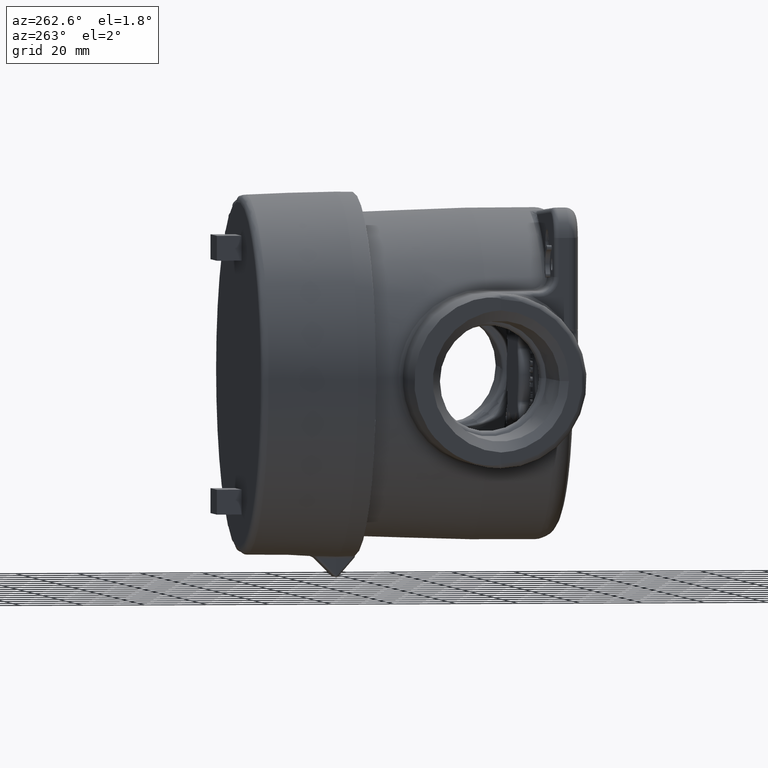
[diagram: clean part render]
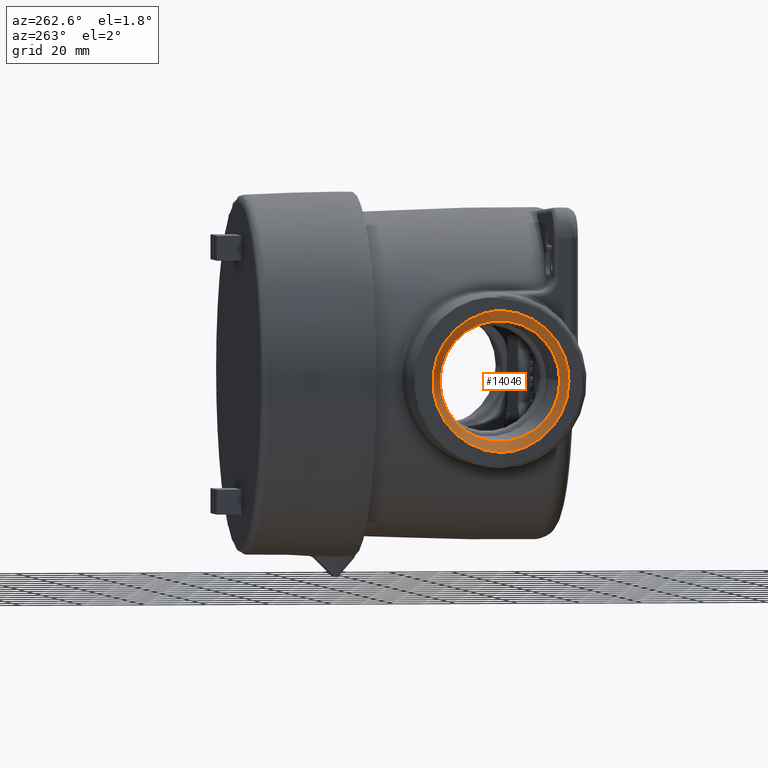
[diagram: same view with one face highlighted and labeled with its STEP entity id]
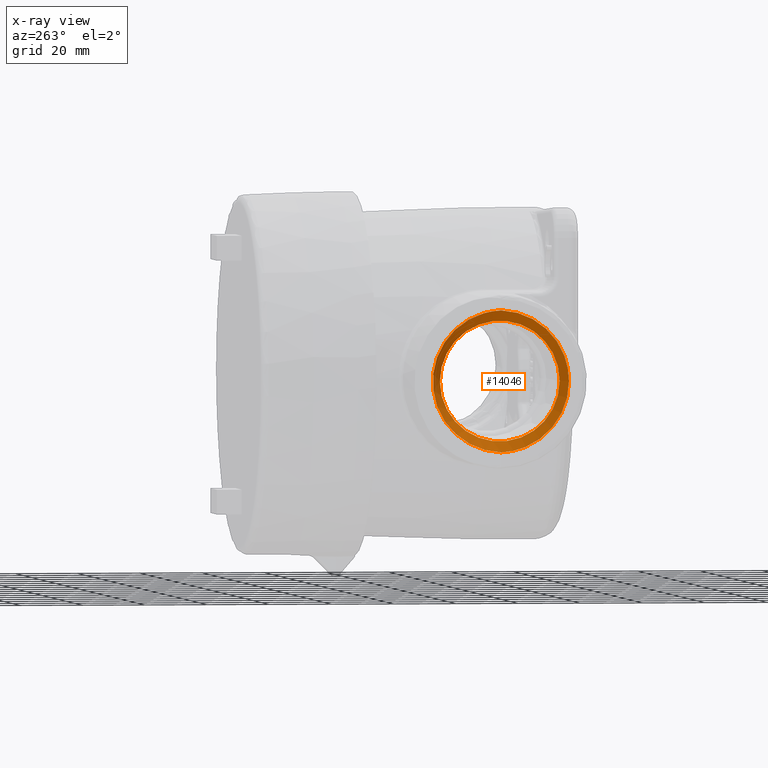
[diagram: x-ray of the same camera — body ghosted, the highlighted face saturated]
A machine part, auxiliary view. The second image highlights one B-rep face of the part: STEP entity #14046.
The next image is the same camera in x-ray: the body ghosted, the highlighted face saturated — about 0% of this face is hidden behind the body in this view.
In plain terms, the highlighted conical surface has half-angle 45 deg.
Its self-contained STEP definition (entity closure, byte-faithful):
#56=ELLIPSE('',#14997,0.893633463905253,0.89254437715859);
#57=ELLIPSE('',#14998,0.893633463905253,0.89254437715859);
#58=ELLIPSE('',#14999,0.893633463905253,0.89254437715859);
#167=CONICAL_SURFACE('',#14996,0.825,0.78539816339745);
#269=LINE('',#24688,#1528);
#1528=VECTOR('',#16188,0.825);
#3315=FACE_OUTER_BOUND('',#4163,.T.);
#4163=EDGE_LOOP('',(#9838,#9839,#9840,#9841,#9842,#9843,#9844));
#5584=CIRCLE('',#15000,0.758);
#5585=CIRCLE('',#15001,0.758);
#6089=VERTEX_POINT('',#24681);
#6090=VERTEX_POINT('',#24682);
#6091=VERTEX_POINT('',#24684);
#6092=VERTEX_POINT('',#24687);
#6093=VERTEX_POINT('',#24689);
#7540=EDGE_CURVE('',#6089,#6090,#56,.T.);
#7541=EDGE_CURVE('',#6091,#6089,#57,.T.);
#7542=EDGE_CURVE('',#6090,#6091,#58,.T.);
#7543=EDGE_CURVE('',#6090,#6092,#269,.T.);
#7544=EDGE_CURVE('',#6092,#6093,#5584,.T.);
#7545=EDGE_CURVE('',#6093,#6092,#5585,.T.);
#9838=ORIENTED_EDGE('',*,*,#7540,.F.);
#9839=ORIENTED_EDGE('',*,*,#7541,.F.);
#9840=ORIENTED_EDGE('',*,*,#7542,.F.);
#9841=ORIENTED_EDGE('',*,*,#7543,.T.);
#9842=ORIENTED_EDGE('',*,*,#7544,.T.);
#9843=ORIENTED_EDGE('',*,*,#7545,.T.);
#9844=ORIENTED_EDGE('',*,*,#7543,.F.);
#14046=ADVANCED_FACE('',(#3315),#167,.F.);
#14996=AXIS2_PLACEMENT_3D('',#24680,#16180,#16181);
#14997=AXIS2_PLACEMENT_3D('',#24683,#16182,#16183);
#14998=AXIS2_PLACEMENT_3D('',#24685,#16184,#16185);
#14999=AXIS2_PLACEMENT_3D('',#24686,#16186,#16187);
#15000=AXIS2_PLACEMENT_3D('',#24690,#16189,#16190);
#15001=AXIS2_PLACEMENT_3D('',#24691,#16191,#16192);
#16180=DIRECTION('center_axis',(-1.,0.,-1.22464679914735E-16));
#16181=DIRECTION('ref_axis',(0.,1.,0.));
#16182=DIRECTION('center_axis',(0.999390827019096,0.034899496702501,1.22390077740616E-16));
#16183=DIRECTION('ref_axis',(0.0348994967025014,-0.999390827019096,3.69822394697274E-15));
#16184=DIRECTION('center_axis',(0.999390827019096,-0.034899496702501,1.22390077740616E-16));
#16185=DIRECTION('ref_axis',(-0.0348994967025008,-0.999390827019096,1.0699448296219E-13));
#16186=DIRECTION('center_axis',(0.999390827019096,0.034899496702501,1.22390077740616E-16));
#16187=DIRECTION('ref_axis',(0.0348994967025014,-0.999390827019096,3.69822394697274E-15));
#16188=DIRECTION('',(0.707106781186547,0.707106781186548,1.73191211247099E-16));
#16189=DIRECTION('center_axis',(1.,0.,1.22464679914735E-16));
#16190=DIRECTION('ref_axis',(0.,1.,0.));
#16191=DIRECTION('center_axis',(1.,0.,1.22464679914735E-16));
#16192=DIRECTION('ref_axis',(0.,1.,0.));
#24680=CARTESIAN_POINT('Origin',(-3.183,-2.4056,-3.89805076168602E-16));
#24681=CARTESIAN_POINT('',(-3.25,-2.4056,0.891999999999999));
#24682=CARTESIAN_POINT('',(-3.2199017284174,-3.2675017284174,-4.99876753816133E-16));
#24683=CARTESIAN_POINT('Origin',(-3.2510890865442,-2.37441264187319,-1.74838271594513E-16));
#24684=CARTESIAN_POINT('',(-3.25,-2.4056,-0.892));
#24685=CARTESIAN_POINT('Origin',(-3.2510890865442,-2.43678735812681,0.));
#24686=CARTESIAN_POINT('Origin',(-3.2510890865442,-2.37441264187319,-1.74838271594513E-16));
#24687=CARTESIAN_POINT('',(-3.116,-3.1636,-4.74428169989685E-16));
#24688=CARTESIAN_POINT('',(-3.183,-3.2306,-4.90838437098259E-16));
#24689=CARTESIAN_POINT('',(-3.116,-1.6476,-3.81599942614315E-16));
#24690=CARTESIAN_POINT('Origin',(-3.116,-2.4056,-3.81599942614315E-16));
#24691=CARTESIAN_POINT('Origin',(-3.116,-2.4056,-3.81599942614315E-16));